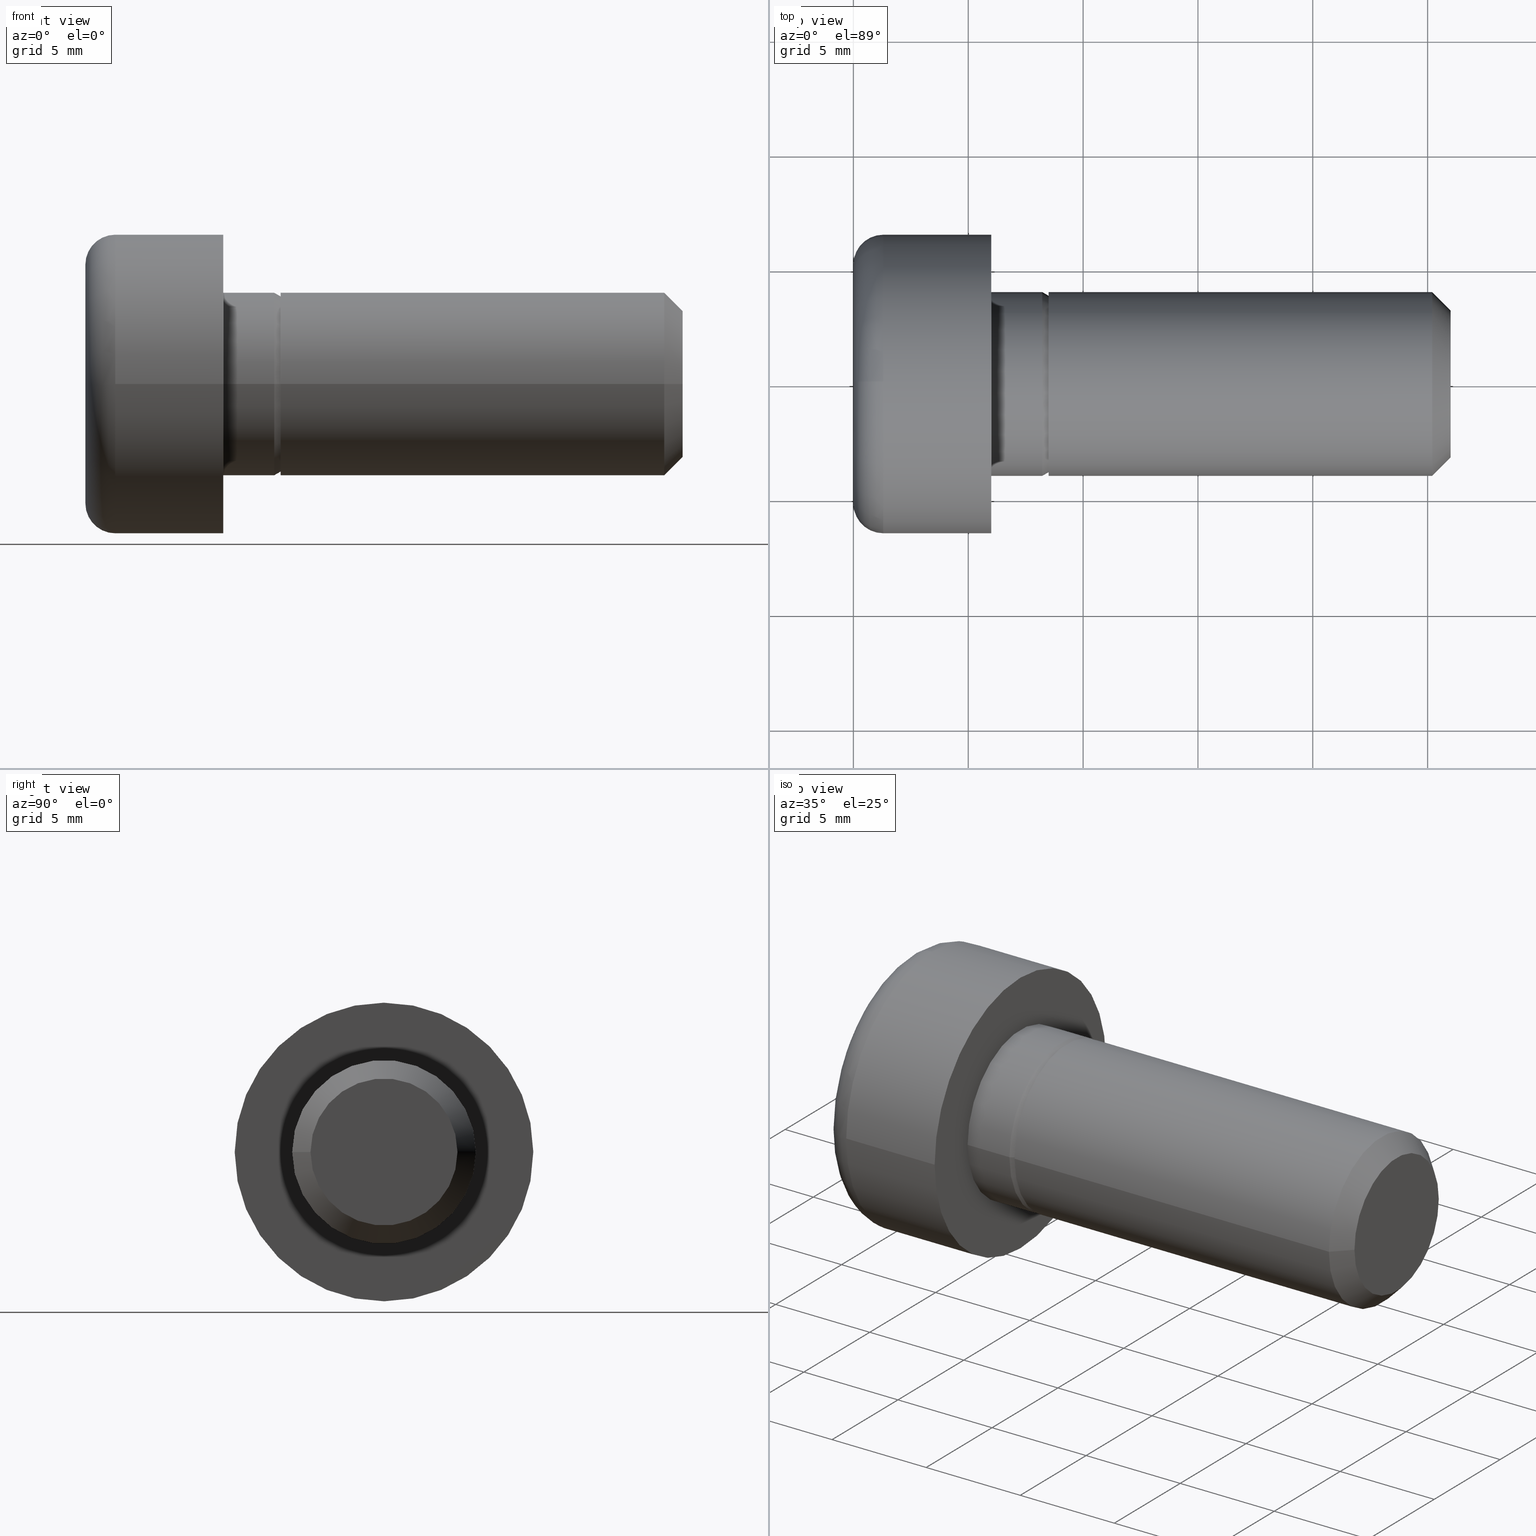
[diagram: canonical four-view strip — front | top / right | iso, engineering-drawing reading convention]
A machine part, canonical four-view strip (front | top / right | iso — engineering-drawing reading convention). The complete STEP part file that produces these views, byte-faithful:
ISO-10303-21;
HEADER;
/* Generated by software containing ST-Developer
 * from STEP Tools, Inc. (www.steptools.com) 
 */

FILE_DESCRIPTION(
/* description */ ('VITE TCEI  8X20 ZN RIBASSATA'),
/* implementation_level */ '2;1');

FILE_NAME(
/* name */ 
'Q:\\Catalogo\\2_Accessori Dierre\\Per Download Web e catalogo cartace
o\\CATALOGO ELEMENTI ASSEMBLAGGIO\\PAGINA 16\\CVITB0000021.stp',
/* time_stamp */ '2019-04-16T10:44:34+02:00',
/* author */ ('fzagni'),
/* organization */ (''),
/* preprocessor_version */ 'ST-DEVELOPER v17.2',
/* originating_system */ 'Autodesk Inventor 2019',
/* authorisation */ '');

FILE_SCHEMA (('AUTOMOTIVE_DESIGN { 1 0 10303 214 3 1 1 }'));
ENDSEC;

DATA;
#10=MECHANICAL_DESIGN_GEOMETRIC_PRESENTATION_REPRESENTATION('',(#13),#584);
#11=SHAPE_REPRESENTATION_RELATIONSHIP('SRR','None',#591,#12);
#12=ADVANCED_BREP_SHAPE_REPRESENTATION('',(#14),#583);
#13=STYLED_ITEM('',(#600),#14);
#14=MANIFOLD_SOLID_BREP('Solido1',#320);
#15=CYLINDRICAL_SURFACE('',#355,6.5);
#16=CYLINDRICAL_SURFACE('',#361,4.);
#17=CYLINDRICAL_SURFACE('',#370,4.);
#18=TOROIDAL_SURFACE('',#350,5.2,1.3);
#19=FACE_BOUND('',#70,.T.);
#20=FACE_BOUND('',#74,.T.);
#21=FACE_BOUND('',#78,.T.);
#22=CIRCLE('',#348,5.2);
#23=CIRCLE('',#349,5.2);
#24=CIRCLE('',#351,6.5);
#25=CIRCLE('',#352,6.5);
#26=CIRCLE('',#353,6.5);
#27=CIRCLE('',#354,1.3);
#28=CIRCLE('',#356,6.5);
#29=CIRCLE('',#357,6.5);
#30=CIRCLE('',#359,4.);
#31=CIRCLE('',#360,4.);
#32=CIRCLE('',#362,4.);
#33=CIRCLE('',#363,4.);
#34=CIRCLE('',#365,3.84);
#35=CIRCLE('',#366,3.84);
#36=CIRCLE('',#368,4.);
#37=CIRCLE('',#369,4.);
#38=CIRCLE('',#371,4.);
#39=CIRCLE('',#372,4.);
#40=CIRCLE('',#374,3.2);
#41=CIRCLE('',#375,3.2);
#42=CONICAL_SURFACE('',#346,1.8,1.0471975511966);
#43=CONICAL_SURFACE('',#364,3.92,0.523598775598294);
#44=CONICAL_SURFACE('',#373,3.6,0.785398163397449);
#45=FACE_OUTER_BOUND('',#62,.T.);
#46=FACE_OUTER_BOUND('',#63,.T.);
#47=FACE_OUTER_BOUND('',#64,.T.);
#48=FACE_OUTER_BOUND('',#65,.T.);
#49=FACE_OUTER_BOUND('',#66,.T.);
#50=FACE_OUTER_BOUND('',#67,.T.);
#51=FACE_OUTER_BOUND('',#68,.T.);
#52=FACE_OUTER_BOUND('',#69,.T.);
#53=FACE_OUTER_BOUND('',#71,.T.);
#54=FACE_OUTER_BOUND('',#72,.T.);
#55=FACE_OUTER_BOUND('',#73,.T.);
#56=FACE_OUTER_BOUND('',#75,.T.);
#57=FACE_OUTER_BOUND('',#76,.T.);
#58=FACE_OUTER_BOUND('',#77,.T.);
#59=FACE_OUTER_BOUND('',#79,.T.);
#60=FACE_OUTER_BOUND('',#80,.T.);
#61=FACE_OUTER_BOUND('',#81,.T.);
#62=EDGE_LOOP('',(#203,#204,#205,#206));
#63=EDGE_LOOP('',(#207,#208,#209,#210));
#64=EDGE_LOOP('',(#211,#212,#213,#214));
#65=EDGE_LOOP('',(#215,#216,#217,#218,#219));
#66=EDGE_LOOP('',(#220,#221,#222,#223));
#67=EDGE_LOOP('',(#224,#225,#226,#227));
#68=EDGE_LOOP('',(#228,#229,#230,#231,#232,#233,#234,#235,#236));
#69=EDGE_LOOP('',(#237,#238));
#70=EDGE_LOOP('',(#239,#240,#241,#242,#243,#244));
#71=EDGE_LOOP('',(#245,#246,#247,#248,#249,#250,#251));
#72=EDGE_LOOP('',(#252,#253,#254,#255,#256,#257,#258));
#73=EDGE_LOOP('',(#259,#260));
#74=EDGE_LOOP('',(#261,#262));
#75=EDGE_LOOP('',(#263,#264,#265,#266,#267,#268));
#76=EDGE_LOOP('',(#269,#270,#271,#272,#273,#274));
#77=EDGE_LOOP('',(#275,#276));
#78=EDGE_LOOP('',(#277,#278));
#79=EDGE_LOOP('',(#279,#280,#281,#282,#283,#284));
#80=EDGE_LOOP('',(#285,#286,#287,#288,#289,#290));
#81=EDGE_LOOP('',(#291,#292));
#82=LINE('',#479,#100);
#83=LINE('',#481,#101);
#84=LINE('',#482,#102);
#85=LINE('',#489,#103);
#86=LINE('',#490,#104);
#87=LINE('',#497,#105);
#88=LINE('',#498,#106);
#89=LINE('',#505,#107);
#90=LINE('',#507,#108);
#91=LINE('',#517,#109);
#92=LINE('',#518,#110);
#93=LINE('',#523,#111);
#94=LINE('',#526,#112);
#95=LINE('',#545,#113);
#96=LINE('',#556,#114);
#97=LINE('',#562,#115);
#98=LINE('',#573,#116);
#99=LINE('',#579,#117);
#100=VECTOR('',#381,10.);
#101=VECTOR('',#382,10.);
#102=VECTOR('',#383,10.);
#103=VECTOR('',#386,10.);
#104=VECTOR('',#387,10.);
#105=VECTOR('',#390,10.);
#106=VECTOR('',#391,10.);
#107=VECTOR('',#394,10.);
#108=VECTOR('',#395,10.);
#109=VECTOR('',#398,10.);
#110=VECTOR('',#399,10.);
#111=VECTOR('',#402,10.);
#112=VECTOR('',#405,1.8);
#113=VECTOR('',#428,6.5);
#114=VECTOR('',#441,4.);
#115=VECTOR('',#448,3.92);
#116=VECTOR('',#461,4.);
#117=VECTOR('',#468,3.6);
#118=(
BOUNDED_CURVE()
B_SPLINE_CURVE(2,(#475,#476,#477),.UNSPECIFIED.,.F.,.F.)
B_SPLINE_CURVE_WITH_KNOTS((3,3),(0.0224841371605266,0.381496060373957),
 .UNSPECIFIED.)
CURVE()
GEOMETRIC_REPRESENTATION_ITEM()
RATIONAL_B_SPLINE_CURVE((1.02102355330306,1.17897644669694,1.02102355330306))
REPRESENTATION_ITEM('')
);
#119=(
BOUNDED_CURVE()
B_SPLINE_CURVE(2,(#485,#486,#487),.UNSPECIFIED.,.F.,.F.)
B_SPLINE_CURVE_WITH_KNOTS((3,3),(0.0224841371605266,0.381496060373957),
 .UNSPECIFIED.)
CURVE()
GEOMETRIC_REPRESENTATION_ITEM()
RATIONAL_B_SPLINE_CURVE((1.02102355330306,1.17897644669694,1.02102355330306))
REPRESENTATION_ITEM('')
);
#120=(
BOUNDED_CURVE()
B_SPLINE_CURVE(2,(#493,#494,#495),.UNSPECIFIED.,.F.,.F.)
B_SPLINE_CURVE_WITH_KNOTS((3,3),(0.0224841371605264,0.381496060373957),
 .UNSPECIFIED.)
CURVE()
GEOMETRIC_REPRESENTATION_ITEM()
RATIONAL_B_SPLINE_CURVE((1.02102355330306,1.17897644669694,1.02102355330306))
REPRESENTATION_ITEM('')
);
#121=(
BOUNDED_CURVE()
B_SPLINE_CURVE(2,(#501,#502,#503),.UNSPECIFIED.,.F.,.F.)
B_SPLINE_CURVE_WITH_KNOTS((3,3),(0.0224841371605265,0.201990098767242),
 .UNSPECIFIED.)
CURVE()
GEOMETRIC_REPRESENTATION_ITEM()
RATIONAL_B_SPLINE_CURVE((1.02102355330306,1.1,1.1))
REPRESENTATION_ITEM('')
);
#122=(
BOUNDED_CURVE()
B_SPLINE_CURVE(2,(#508,#509,#510),.UNSPECIFIED.,.F.,.F.)
B_SPLINE_CURVE_WITH_KNOTS((3,3),(0.201990098767242,0.381496060373957),
 .UNSPECIFIED.)
CURVE()
GEOMETRIC_REPRESENTATION_ITEM()
RATIONAL_B_SPLINE_CURVE((1.1,1.1,1.02102355330306))
REPRESENTATION_ITEM('')
);
#123=(
BOUNDED_CURVE()
B_SPLINE_CURVE(2,(#513,#514,#515),.UNSPECIFIED.,.F.,.F.)
B_SPLINE_CURVE_WITH_KNOTS((3,3),(0.0224841371605265,0.381496060373957),
 .UNSPECIFIED.)
CURVE()
GEOMETRIC_REPRESENTATION_ITEM()
RATIONAL_B_SPLINE_CURVE((1.02102355330306,1.17897644669694,1.02102355330306))
REPRESENTATION_ITEM('')
);
#124=(
BOUNDED_CURVE()
B_SPLINE_CURVE(2,(#520,#521,#522),.UNSPECIFIED.,.F.,.F.)
B_SPLINE_CURVE_WITH_KNOTS((3,3),(0.0224841371605264,0.381496060373957),
 .UNSPECIFIED.)
CURVE()
GEOMETRIC_REPRESENTATION_ITEM()
RATIONAL_B_SPLINE_CURVE((1.02102355330306,1.17897644669695,1.02102355330306))
REPRESENTATION_ITEM('')
);
#125=VERTEX_POINT('',#473);
#126=VERTEX_POINT('',#474);
#127=VERTEX_POINT('',#478);
#128=VERTEX_POINT('',#480);
#129=VERTEX_POINT('',#484);
#130=VERTEX_POINT('',#488);
#131=VERTEX_POINT('',#492);
#132=VERTEX_POINT('',#496);
#133=VERTEX_POINT('',#500);
#134=VERTEX_POINT('',#504);
#135=VERTEX_POINT('',#506);
#136=VERTEX_POINT('',#512);
#137=VERTEX_POINT('',#516);
#138=VERTEX_POINT('',#525);
#139=VERTEX_POINT('',#528);
#140=VERTEX_POINT('',#529);
#141=VERTEX_POINT('',#533);
#142=VERTEX_POINT('',#534);
#143=VERTEX_POINT('',#536);
#144=VERTEX_POINT('',#541);
#145=VERTEX_POINT('',#542);
#146=VERTEX_POINT('',#547);
#147=VERTEX_POINT('',#548);
#148=VERTEX_POINT('',#552);
#149=VERTEX_POINT('',#553);
#150=VERTEX_POINT('',#558);
#151=VERTEX_POINT('',#559);
#152=VERTEX_POINT('',#564);
#153=VERTEX_POINT('',#565);
#154=VERTEX_POINT('',#569);
#155=VERTEX_POINT('',#570);
#156=VERTEX_POINT('',#575);
#157=VERTEX_POINT('',#576);
#158=EDGE_CURVE('',#125,#126,#118,.T.);
#159=EDGE_CURVE('',#127,#125,#82,.T.);
#160=EDGE_CURVE('',#128,#127,#83,.T.);
#161=EDGE_CURVE('',#128,#126,#84,.T.);
#162=EDGE_CURVE('',#129,#125,#119,.T.);
#163=EDGE_CURVE('',#130,#129,#85,.T.);
#164=EDGE_CURVE('',#127,#130,#86,.T.);
#165=EDGE_CURVE('',#131,#129,#120,.T.);
#166=EDGE_CURVE('',#132,#131,#87,.T.);
#167=EDGE_CURVE('',#130,#132,#88,.T.);
#168=EDGE_CURVE('',#126,#133,#121,.T.);
#169=EDGE_CURVE('',#134,#128,#89,.T.);
#170=EDGE_CURVE('',#134,#135,#90,.T.);
#171=EDGE_CURVE('',#133,#135,#122,.T.);
#172=EDGE_CURVE('',#135,#136,#123,.T.);
#173=EDGE_CURVE('',#137,#134,#91,.T.);
#174=EDGE_CURVE('',#137,#136,#92,.T.);
#175=EDGE_CURVE('',#136,#131,#124,.T.);
#176=EDGE_CURVE('',#132,#137,#93,.T.);
#177=EDGE_CURVE('',#138,#133,#94,.T.);
#178=EDGE_CURVE('',#139,#140,#22,.T.);
#179=EDGE_CURVE('',#140,#139,#23,.T.);
#180=EDGE_CURVE('',#141,#142,#24,.T.);
#181=EDGE_CURVE('',#143,#141,#25,.T.);
#182=EDGE_CURVE('',#142,#143,#26,.T.);
#183=EDGE_CURVE('',#142,#140,#27,.T.);
#184=EDGE_CURVE('',#144,#145,#28,.T.);
#185=EDGE_CURVE('',#145,#144,#29,.T.);
#186=EDGE_CURVE('',#145,#143,#95,.T.);
#187=EDGE_CURVE('',#146,#147,#30,.T.);
#188=EDGE_CURVE('',#147,#146,#31,.T.);
#189=EDGE_CURVE('',#148,#149,#32,.T.);
#190=EDGE_CURVE('',#149,#148,#33,.T.);
#191=EDGE_CURVE('',#149,#147,#96,.T.);
#192=EDGE_CURVE('',#150,#151,#34,.T.);
#193=EDGE_CURVE('',#151,#150,#35,.T.);
#194=EDGE_CURVE('',#151,#149,#97,.T.);
#195=EDGE_CURVE('',#152,#153,#36,.T.);
#196=EDGE_CURVE('',#153,#152,#37,.T.);
#197=EDGE_CURVE('',#154,#155,#38,.T.);
#198=EDGE_CURVE('',#155,#154,#39,.T.);
#199=EDGE_CURVE('',#155,#153,#98,.T.);
#200=EDGE_CURVE('',#156,#157,#40,.T.);
#201=EDGE_CURVE('',#157,#156,#41,.T.);
#202=EDGE_CURVE('',#157,#155,#99,.T.);
#203=ORIENTED_EDGE('',*,*,#158,.F.);
#204=ORIENTED_EDGE('',*,*,#159,.F.);
#205=ORIENTED_EDGE('',*,*,#160,.F.);
#206=ORIENTED_EDGE('',*,*,#161,.T.);
#207=ORIENTED_EDGE('',*,*,#162,.F.);
#208=ORIENTED_EDGE('',*,*,#163,.F.);
#209=ORIENTED_EDGE('',*,*,#164,.F.);
#210=ORIENTED_EDGE('',*,*,#159,.T.);
#211=ORIENTED_EDGE('',*,*,#165,.F.);
#212=ORIENTED_EDGE('',*,*,#166,.F.);
#213=ORIENTED_EDGE('',*,*,#167,.F.);
#214=ORIENTED_EDGE('',*,*,#163,.T.);
#215=ORIENTED_EDGE('',*,*,#168,.F.);
#216=ORIENTED_EDGE('',*,*,#161,.F.);
#217=ORIENTED_EDGE('',*,*,#169,.F.);
#218=ORIENTED_EDGE('',*,*,#170,.T.);
#219=ORIENTED_EDGE('',*,*,#171,.F.);
#220=ORIENTED_EDGE('',*,*,#172,.F.);
#221=ORIENTED_EDGE('',*,*,#170,.F.);
#222=ORIENTED_EDGE('',*,*,#173,.F.);
#223=ORIENTED_EDGE('',*,*,#174,.T.);
#224=ORIENTED_EDGE('',*,*,#175,.F.);
#225=ORIENTED_EDGE('',*,*,#174,.F.);
#226=ORIENTED_EDGE('',*,*,#176,.F.);
#227=ORIENTED_EDGE('',*,*,#166,.T.);
#228=ORIENTED_EDGE('',*,*,#177,.T.);
#229=ORIENTED_EDGE('',*,*,#171,.T.);
#230=ORIENTED_EDGE('',*,*,#172,.T.);
#231=ORIENTED_EDGE('',*,*,#175,.T.);
#232=ORIENTED_EDGE('',*,*,#165,.T.);
#233=ORIENTED_EDGE('',*,*,#162,.T.);
#234=ORIENTED_EDGE('',*,*,#158,.T.);
#235=ORIENTED_EDGE('',*,*,#168,.T.);
#236=ORIENTED_EDGE('',*,*,#177,.F.);
#237=ORIENTED_EDGE('',*,*,#178,.F.);
#238=ORIENTED_EDGE('',*,*,#179,.F.);
#239=ORIENTED_EDGE('',*,*,#167,.T.);
#240=ORIENTED_EDGE('',*,*,#176,.T.);
#241=ORIENTED_EDGE('',*,*,#173,.T.);
#242=ORIENTED_EDGE('',*,*,#169,.T.);
#243=ORIENTED_EDGE('',*,*,#160,.T.);
#244=ORIENTED_EDGE('',*,*,#164,.T.);
#245=ORIENTED_EDGE('',*,*,#180,.F.);
#246=ORIENTED_EDGE('',*,*,#181,.F.);
#247=ORIENTED_EDGE('',*,*,#182,.F.);
#248=ORIENTED_EDGE('',*,*,#183,.T.);
#249=ORIENTED_EDGE('',*,*,#179,.T.);
#250=ORIENTED_EDGE('',*,*,#178,.T.);
#251=ORIENTED_EDGE('',*,*,#183,.F.);
#252=ORIENTED_EDGE('',*,*,#184,.F.);
#253=ORIENTED_EDGE('',*,*,#185,.F.);
#254=ORIENTED_EDGE('',*,*,#186,.T.);
#255=ORIENTED_EDGE('',*,*,#181,.T.);
#256=ORIENTED_EDGE('',*,*,#180,.T.);
#257=ORIENTED_EDGE('',*,*,#182,.T.);
#258=ORIENTED_EDGE('',*,*,#186,.F.);
#259=ORIENTED_EDGE('',*,*,#184,.T.);
#260=ORIENTED_EDGE('',*,*,#185,.T.);
#261=ORIENTED_EDGE('',*,*,#187,.F.);
#262=ORIENTED_EDGE('',*,*,#188,.F.);
#263=ORIENTED_EDGE('',*,*,#189,.F.);
#264=ORIENTED_EDGE('',*,*,#190,.F.);
#265=ORIENTED_EDGE('',*,*,#191,.T.);
#266=ORIENTED_EDGE('',*,*,#188,.T.);
#267=ORIENTED_EDGE('',*,*,#187,.T.);
#268=ORIENTED_EDGE('',*,*,#191,.F.);
#269=ORIENTED_EDGE('',*,*,#192,.F.);
#270=ORIENTED_EDGE('',*,*,#193,.F.);
#271=ORIENTED_EDGE('',*,*,#194,.T.);
#272=ORIENTED_EDGE('',*,*,#190,.T.);
#273=ORIENTED_EDGE('',*,*,#189,.T.);
#274=ORIENTED_EDGE('',*,*,#194,.F.);
#275=ORIENTED_EDGE('',*,*,#195,.F.);
#276=ORIENTED_EDGE('',*,*,#196,.F.);
#277=ORIENTED_EDGE('',*,*,#192,.T.);
#278=ORIENTED_EDGE('',*,*,#193,.T.);
#279=ORIENTED_EDGE('',*,*,#197,.F.);
#280=ORIENTED_EDGE('',*,*,#198,.F.);
#281=ORIENTED_EDGE('',*,*,#199,.T.);
#282=ORIENTED_EDGE('',*,*,#196,.T.);
#283=ORIENTED_EDGE('',*,*,#195,.T.);
#284=ORIENTED_EDGE('',*,*,#199,.F.);
#285=ORIENTED_EDGE('',*,*,#200,.F.);
#286=ORIENTED_EDGE('',*,*,#201,.F.);
#287=ORIENTED_EDGE('',*,*,#202,.T.);
#288=ORIENTED_EDGE('',*,*,#198,.T.);
#289=ORIENTED_EDGE('',*,*,#197,.T.);
#290=ORIENTED_EDGE('',*,*,#202,.F.);
#291=ORIENTED_EDGE('',*,*,#200,.T.);
#292=ORIENTED_EDGE('',*,*,#201,.T.);
#293=PLANE('',#340);
#294=PLANE('',#341);
#295=PLANE('',#342);
#296=PLANE('',#343);
#297=PLANE('',#344);
#298=PLANE('',#345);
#299=PLANE('',#347);
#300=PLANE('',#358);
#301=PLANE('',#367);
#302=PLANE('',#376);
#303=ADVANCED_FACE('',(#45),#293,.F.);
#304=ADVANCED_FACE('',(#46),#294,.F.);
#305=ADVANCED_FACE('',(#47),#295,.F.);
#306=ADVANCED_FACE('',(#48),#296,.F.);
#307=ADVANCED_FACE('',(#49),#297,.F.);
#308=ADVANCED_FACE('',(#50),#298,.F.);
#309=ADVANCED_FACE('',(#51),#42,.F.);
#310=ADVANCED_FACE('',(#52,#19),#299,.T.);
#311=ADVANCED_FACE('',(#53),#18,.T.);
#312=ADVANCED_FACE('',(#54),#15,.T.);
#313=ADVANCED_FACE('',(#55,#20),#300,.T.);
#314=ADVANCED_FACE('',(#56),#16,.T.);
#315=ADVANCED_FACE('',(#57),#43,.T.);
#316=ADVANCED_FACE('',(#58,#21),#301,.T.);
#317=ADVANCED_FACE('',(#59),#17,.T.);
#318=ADVANCED_FACE('',(#60),#44,.T.);
#319=ADVANCED_FACE('',(#61),#302,.T.);
#320=CLOSED_SHELL('',(#303,#304,#305,#306,#307,#308,#309,#310,#311,#312,
#313,#314,#315,#316,#317,#318,#319));
#321=DERIVED_UNIT_ELEMENT(#323,1.);
#322=DERIVED_UNIT_ELEMENT(#586,3.);
#323=(
MASS_UNIT()
NAMED_UNIT(*)
SI_UNIT($,.GRAM.)
);
#324=DERIVED_UNIT((#321,#322));
#325=MEASURE_REPRESENTATION_ITEM('density measure',
POSITIVE_RATIO_MEASURE(7.85),#324);
#326=PROPERTY_DEFINITION_REPRESENTATION(#331,#328);
#327=PROPERTY_DEFINITION_REPRESENTATION(#332,#329);
#328=REPRESENTATION('material name',(#330),#583);
#329=REPRESENTATION('density',(#325),#583);
#330=DESCRIPTIVE_REPRESENTATION_ITEM('FE 310-0','FE 310-0');
#331=PROPERTY_DEFINITION('material property','material name',#593);
#332=PROPERTY_DEFINITION('material property','density of part',#593);
#333=DATE_TIME_ROLE('creation_date');
#334=APPLIED_DATE_AND_TIME_ASSIGNMENT(#335,#333,(#593));
#335=DATE_AND_TIME(#336,#337);
#336=CALENDAR_DATE(2003,9,5);
#337=LOCAL_TIME(16,38,37.,#338);
#338=COORDINATED_UNIVERSAL_TIME_OFFSET(0,0,.BEHIND.);
#339=AXIS2_PLACEMENT_3D('placement',#471,#377,#378);
#340=AXIS2_PLACEMENT_3D('',#472,#379,#380);
#341=AXIS2_PLACEMENT_3D('',#483,#384,#385);
#342=AXIS2_PLACEMENT_3D('',#491,#388,#389);
#343=AXIS2_PLACEMENT_3D('',#499,#392,#393);
#344=AXIS2_PLACEMENT_3D('',#511,#396,#397);
#345=AXIS2_PLACEMENT_3D('',#519,#400,#401);
#346=AXIS2_PLACEMENT_3D('',#524,#403,#404);
#347=AXIS2_PLACEMENT_3D('',#527,#406,#407);
#348=AXIS2_PLACEMENT_3D('',#530,#408,#409);
#349=AXIS2_PLACEMENT_3D('',#531,#410,#411);
#350=AXIS2_PLACEMENT_3D('',#532,#412,#413);
#351=AXIS2_PLACEMENT_3D('',#535,#414,#415);
#352=AXIS2_PLACEMENT_3D('',#537,#416,#417);
#353=AXIS2_PLACEMENT_3D('',#538,#418,#419);
#354=AXIS2_PLACEMENT_3D('',#539,#420,#421);
#355=AXIS2_PLACEMENT_3D('',#540,#422,#423);
#356=AXIS2_PLACEMENT_3D('',#543,#424,#425);
#357=AXIS2_PLACEMENT_3D('',#544,#426,#427);
#358=AXIS2_PLACEMENT_3D('',#546,#429,#430);
#359=AXIS2_PLACEMENT_3D('',#549,#431,#432);
#360=AXIS2_PLACEMENT_3D('',#550,#433,#434);
#361=AXIS2_PLACEMENT_3D('',#551,#435,#436);
#362=AXIS2_PLACEMENT_3D('',#554,#437,#438);
#363=AXIS2_PLACEMENT_3D('',#555,#439,#440);
#364=AXIS2_PLACEMENT_3D('',#557,#442,#443);
#365=AXIS2_PLACEMENT_3D('',#560,#444,#445);
#366=AXIS2_PLACEMENT_3D('',#561,#446,#447);
#367=AXIS2_PLACEMENT_3D('',#563,#449,#450);
#368=AXIS2_PLACEMENT_3D('',#566,#451,#452);
#369=AXIS2_PLACEMENT_3D('',#567,#453,#454);
#370=AXIS2_PLACEMENT_3D('',#568,#455,#456);
#371=AXIS2_PLACEMENT_3D('',#571,#457,#458);
#372=AXIS2_PLACEMENT_3D('',#572,#459,#460);
#373=AXIS2_PLACEMENT_3D('',#574,#462,#463);
#374=AXIS2_PLACEMENT_3D('',#577,#464,#465);
#375=AXIS2_PLACEMENT_3D('',#578,#466,#467);
#376=AXIS2_PLACEMENT_3D('',#580,#469,#470);
#377=DIRECTION('axis',(0.,0.,1.));
#378=DIRECTION('refdir',(1.,0.,0.));
#379=DIRECTION('center_axis',(0.,-0.5,-0.866025403784439));
#380=DIRECTION('ref_axis',(-1.,0.,0.));
#381=DIRECTION('',(1.,0.,0.));
#382=DIRECTION('',(-1.98609093482624E-33,0.866025403784439,-0.5));
#383=DIRECTION('',(1.,0.,0.));
#384=DIRECTION('center_axis',(0.,0.5,-0.866025403784439));
#385=DIRECTION('ref_axis',(-1.,0.,0.));
#386=DIRECTION('',(1.,0.,0.));
#387=DIRECTION('',(-1.98609093482624E-33,0.866025403784439,0.5));
#388=DIRECTION('center_axis',(0.,1.,0.));
#389=DIRECTION('ref_axis',(0.,0.,1.));
#390=DIRECTION('',(1.,0.,0.));
#391=DIRECTION('',(0.,0.,1.));
#392=DIRECTION('center_axis',(0.,-1.,0.));
#393=DIRECTION('ref_axis',(0.,0.,-1.));
#394=DIRECTION('',(0.,0.,-1.));
#395=DIRECTION('',(1.,0.,0.));
#396=DIRECTION('center_axis',(0.,-0.5,0.866025403784439));
#397=DIRECTION('ref_axis',(1.,0.,0.));
#398=DIRECTION('',(1.98609093482624E-33,-0.866025403784439,-0.5));
#399=DIRECTION('',(1.,0.,0.));
#400=DIRECTION('center_axis',(0.,0.5,0.866025403784439));
#401=DIRECTION('ref_axis',(1.,0.,0.));
#402=DIRECTION('',(1.98609093482624E-33,-0.866025403784439,0.5));
#403=DIRECTION('center_axis',(-1.,-2.29334027171402E-33,0.));
#404=DIRECTION('ref_axis',(0.,1.,0.));
#405=DIRECTION('',(-0.5,-0.866025403784438,-1.06057523872491E-16));
#406=DIRECTION('center_axis',(-1.,-2.29334027171402E-33,0.));
#407=DIRECTION('ref_axis',(0.,0.,1.));
#408=DIRECTION('center_axis',(1.,2.29334027171402E-33,0.));
#409=DIRECTION('ref_axis',(0.,1.,0.));
#410=DIRECTION('center_axis',(1.,2.29334027171402E-33,0.));
#411=DIRECTION('ref_axis',(0.,1.,0.));
#412=DIRECTION('center_axis',(1.,2.29334027171402E-33,0.));
#413=DIRECTION('ref_axis',(0.,0.,-1.));
#414=DIRECTION('center_axis',(1.,2.29334027171402E-33,0.));
#415=DIRECTION('ref_axis',(0.,1.,0.));
#416=DIRECTION('center_axis',(1.,2.29334027171402E-33,0.));
#417=DIRECTION('ref_axis',(0.,1.,0.));
#418=DIRECTION('center_axis',(1.,2.29334027171402E-33,0.));
#419=DIRECTION('ref_axis',(0.,1.,0.));
#420=DIRECTION('center_axis',(2.29334027171402E-33,-1.,-1.22464679914735E-16));
#421=DIRECTION('ref_axis',(0.,-1.22464679914735E-16,1.));
#422=DIRECTION('center_axis',(1.,2.29334027171402E-33,0.));
#423=DIRECTION('ref_axis',(0.,1.,0.));
#424=DIRECTION('center_axis',(1.,2.29334027171402E-33,0.));
#425=DIRECTION('ref_axis',(0.,1.,0.));
#426=DIRECTION('center_axis',(1.,2.29334027171402E-33,0.));
#427=DIRECTION('ref_axis',(0.,1.,0.));
#428=DIRECTION('',(-1.,-2.29334027171402E-33,0.));
#429=DIRECTION('center_axis',(1.,2.29334027171402E-33,0.));
#430=DIRECTION('ref_axis',(0.,0.,-1.));
#431=DIRECTION('center_axis',(1.,2.29334027171402E-33,0.));
#432=DIRECTION('ref_axis',(0.,1.,0.));
#433=DIRECTION('center_axis',(1.,2.29334027171402E-33,0.));
#434=DIRECTION('ref_axis',(0.,1.,0.));
#435=DIRECTION('center_axis',(1.,2.29334027171402E-33,0.));
#436=DIRECTION('ref_axis',(0.,1.,0.));
#437=DIRECTION('center_axis',(1.,2.29334027171402E-33,0.));
#438=DIRECTION('ref_axis',(0.,1.,0.));
#439=DIRECTION('center_axis',(1.,2.29334027171402E-33,0.));
#440=DIRECTION('ref_axis',(0.,1.,0.));
#441=DIRECTION('',(-1.,-2.29334027171402E-33,0.));
#442=DIRECTION('center_axis',(-1.,-2.29334027171402E-33,0.));
#443=DIRECTION('ref_axis',(0.,1.,0.));
#444=DIRECTION('center_axis',(1.,2.29334027171402E-33,0.));
#445=DIRECTION('ref_axis',(0.,1.,0.));
#446=DIRECTION('center_axis',(1.,2.29334027171402E-33,0.));
#447=DIRECTION('ref_axis',(0.,1.,0.));
#448=DIRECTION('',(-0.866025403784441,-0.499999999999996,-6.12323399573671E-17));
#449=DIRECTION('center_axis',(-1.,-2.29334027171402E-33,0.));
#450=DIRECTION('ref_axis',(0.,0.,1.));
#451=DIRECTION('center_axis',(1.,2.29334027171402E-33,0.));
#452=DIRECTION('ref_axis',(0.,1.,0.));
#453=DIRECTION('center_axis',(1.,2.29334027171402E-33,0.));
#454=DIRECTION('ref_axis',(0.,1.,0.));
#455=DIRECTION('center_axis',(1.,2.29334027171402E-33,0.));
#456=DIRECTION('ref_axis',(0.,1.,0.));
#457=DIRECTION('center_axis',(1.,2.29334027171402E-33,0.));
#458=DIRECTION('ref_axis',(0.,1.,0.));
#459=DIRECTION('center_axis',(1.,2.29334027171402E-33,0.));
#460=DIRECTION('ref_axis',(0.,1.,0.));
#461=DIRECTION('',(-1.,-2.29334027171402E-33,0.));
#462=DIRECTION('center_axis',(-1.,-2.29334027171402E-33,0.));
#463=DIRECTION('ref_axis',(0.,1.,0.));
#464=DIRECTION('center_axis',(1.,2.29334027171402E-33,0.));
#465=DIRECTION('ref_axis',(0.,1.,0.));
#466=DIRECTION('center_axis',(1.,2.29334027171402E-33,0.));
#467=DIRECTION('ref_axis',(0.,1.,0.));
#468=DIRECTION('',(-0.707106781186547,-0.707106781186548,-8.65956056235494E-17));
#469=DIRECTION('center_axis',(1.,2.29334027171402E-33,0.));
#470=DIRECTION('ref_axis',(0.,0.,-1.));
#471=CARTESIAN_POINT('',(0.,0.,0.));
#472=CARTESIAN_POINT('Origin',(-4.1633929657993E-16,-3.46944695195361E-16,
-3.46410161513775));
#473=CARTESIAN_POINT('',(2.5,-3.46944695195361E-16,-3.46410161513775));
#474=CARTESIAN_POINT('',(2.5,-3.,-1.73205080756888));
#475=CARTESIAN_POINT('Ctrl Pts',(2.5,-3.46944695195361E-16,-3.46410161513775));
#476=CARTESIAN_POINT('Ctrl Pts',(3.,-1.5,-2.59807621135332));
#477=CARTESIAN_POINT('Ctrl Pts',(2.5,-3.,-1.73205080756888));
#478=CARTESIAN_POINT('',(-4.1633929657993E-16,-3.46944695195361E-16,-3.46410161513775));
#479=CARTESIAN_POINT('',(-4.1633929657993E-16,-3.46944695195361E-16,-3.46410161513775));
#480=CARTESIAN_POINT('',(-4.1633929657993E-16,-3.,-1.73205080756888));
#481=CARTESIAN_POINT('',(-4.1633929657993E-16,-0.75,-3.03108891324554));
#482=CARTESIAN_POINT('',(-4.1633929657993E-16,-3.,-1.73205080756888));
#483=CARTESIAN_POINT('Origin',(-4.1633929657993E-16,3.,-1.73205080756888));
#484=CARTESIAN_POINT('',(2.5,3.,-1.73205080756888));
#485=CARTESIAN_POINT('Ctrl Pts',(2.5,3.,-1.73205080756888));
#486=CARTESIAN_POINT('Ctrl Pts',(3.,1.5,-2.59807621135332));
#487=CARTESIAN_POINT('Ctrl Pts',(2.5,-3.46944695195361E-16,-3.46410161513775));
#488=CARTESIAN_POINT('',(-4.1633929657993E-16,3.,-1.73205080756888));
#489=CARTESIAN_POINT('',(-4.1633929657993E-16,3.,-1.73205080756888));
#490=CARTESIAN_POINT('',(-4.1633929657993E-16,2.25,-2.1650635094611));
#491=CARTESIAN_POINT('Origin',(-4.1633929657993E-16,3.,1.73205080756888));
#492=CARTESIAN_POINT('',(2.5,3.,1.73205080756888));
#493=CARTESIAN_POINT('Ctrl Pts',(2.5,3.,1.73205080756888));
#494=CARTESIAN_POINT('Ctrl Pts',(3.,3.,-1.21430643318376E-16));
#495=CARTESIAN_POINT('Ctrl Pts',(2.5,3.,-1.73205080756888));
#496=CARTESIAN_POINT('',(-4.1633929657993E-16,3.,1.73205080756888));
#497=CARTESIAN_POINT('',(-4.1633929657993E-16,3.,1.73205080756888));
#498=CARTESIAN_POINT('',(-4.1633929657993E-16,3.,0.866025403784439));
#499=CARTESIAN_POINT('Origin',(-4.1633929657993E-16,-3.,-1.73205080756888));
#500=CARTESIAN_POINT('',(2.76794919243112,-3.,-4.99101288231522E-16));
#501=CARTESIAN_POINT('Ctrl Pts',(2.5,-3.,-1.73205080756888));
#502=CARTESIAN_POINT('Ctrl Pts',(2.76794919243112,-3.,-0.803847577293368));
#503=CARTESIAN_POINT('Ctrl Pts',(2.76794919243112,-3.,-6.30808536718838E-16));
#504=CARTESIAN_POINT('',(-4.1633929657993E-16,-3.,1.73205080756888));
#505=CARTESIAN_POINT('',(-4.1633929657993E-16,-3.,-0.866025403784439));
#506=CARTESIAN_POINT('',(2.5,-3.,1.73205080756888));
#507=CARTESIAN_POINT('',(-4.1633929657993E-16,-3.,1.73205080756888));
#508=CARTESIAN_POINT('Ctrl Pts',(2.76794919243112,-3.,-6.30808536718838E-16));
#509=CARTESIAN_POINT('Ctrl Pts',(2.76794919243112,-3.,0.803847577293367));
#510=CARTESIAN_POINT('Ctrl Pts',(2.5,-3.,1.73205080756888));
#511=CARTESIAN_POINT('Origin',(-4.1633929657993E-16,-3.,1.73205080756888));
#512=CARTESIAN_POINT('',(2.5,-6.93889390390723E-17,3.46410161513775));
#513=CARTESIAN_POINT('Ctrl Pts',(2.5,-3.,1.73205080756888));
#514=CARTESIAN_POINT('Ctrl Pts',(3.,-1.5,2.59807621135332));
#515=CARTESIAN_POINT('Ctrl Pts',(2.5,-6.93889390390723E-17,3.46410161513775));
#516=CARTESIAN_POINT('',(-4.1633929657993E-16,-6.93889390390723E-17,3.46410161513775));
#517=CARTESIAN_POINT('',(-4.1633929657993E-16,-2.25,2.1650635094611));
#518=CARTESIAN_POINT('',(-4.1633929657993E-16,-6.93889390390723E-17,3.46410161513775));
#519=CARTESIAN_POINT('Origin',(-4.1633929657993E-16,-6.93889390390723E-17,
3.46410161513775));
#520=CARTESIAN_POINT('Ctrl Pts',(2.5,-6.93889390390723E-17,3.46410161513775));
#521=CARTESIAN_POINT('Ctrl Pts',(3.,1.5,2.59807621135332));
#522=CARTESIAN_POINT('Ctrl Pts',(2.5,3.,1.73205080756888));
#523=CARTESIAN_POINT('',(-4.1633929657993E-16,0.75,3.03108891324554));
#524=CARTESIAN_POINT('Origin',(3.46076951545867,-2.3833091217915E-33,0.));
#525=CARTESIAN_POINT('',(4.5,0.,0.));
#526=CARTESIAN_POINT('',(3.46076951545867,-1.8,-2.20436423846524E-16));
#527=CARTESIAN_POINT('Origin',(-4.1633929657993E-16,4.4,0.));
#528=CARTESIAN_POINT('',(-8.32678593159861E-16,5.2,0.));
#529=CARTESIAN_POINT('',(-1.11022302462516E-15,-6.36816335556624E-16,5.2));
#530=CARTESIAN_POINT('Origin',(-1.11022302462516E-15,-1.03200312227131E-32,
0.));
#531=CARTESIAN_POINT('Origin',(-1.11022302462516E-15,-1.03200312227131E-32,
0.));
#532=CARTESIAN_POINT('Origin',(1.3,0.,0.));
#533=CARTESIAN_POINT('',(1.3,6.5,0.));
#534=CARTESIAN_POINT('',(1.3,-7.9602041944578E-16,6.5));
#535=CARTESIAN_POINT('Origin',(1.3,-7.33868886948485E-33,0.));
#536=CARTESIAN_POINT('',(1.3,-6.5,-7.9602041944578E-16));
#537=CARTESIAN_POINT('Origin',(1.3,-7.33868886948485E-33,0.));
#538=CARTESIAN_POINT('Origin',(1.3,-7.33868886948485E-33,0.));
#539=CARTESIAN_POINT('Origin',(1.3,-6.36816335556624E-16,5.2));
#540=CARTESIAN_POINT('Origin',(3.65,-1.94933923095692E-33,0.));
#541=CARTESIAN_POINT('',(6.,6.5,0.));
#542=CARTESIAN_POINT('',(6.,-6.5,-7.9602041944578E-16));
#543=CARTESIAN_POINT('Origin',(6.,3.44001040757102E-33,0.));
#544=CARTESIAN_POINT('Origin',(6.,3.44001040757102E-33,0.));
#545=CARTESIAN_POINT('',(3.65,-6.5,-7.9602041944578E-16));
#546=CARTESIAN_POINT('Origin',(6.,5.25,0.));
#547=CARTESIAN_POINT('',(6.,4.,0.));
#548=CARTESIAN_POINT('',(6.,-4.,-4.89858719658941E-16));
#549=CARTESIAN_POINT('Origin',(6.,3.44001040757103E-33,0.));
#550=CARTESIAN_POINT('Origin',(6.,3.44001040757103E-33,0.));
#551=CARTESIAN_POINT('Origin',(7.11143593539449,5.98891119764134E-33,0.));
#552=CARTESIAN_POINT('',(8.22287187078898,4.,0.));
#553=CARTESIAN_POINT('',(8.22287187078898,-4.,-4.89858719658941E-16));
#554=CARTESIAN_POINT('Origin',(8.22287187078898,8.53781198771166E-33,0.));
#555=CARTESIAN_POINT('Origin',(8.22287187078898,8.53781198771166E-33,0.));
#556=CARTESIAN_POINT('',(7.11143593539449,-4.,-4.89858719658941E-16));
#557=CARTESIAN_POINT('Origin',(8.36143593539449,8.85558653728386E-33,0.));
#558=CARTESIAN_POINT('',(8.5,3.84,0.));
#559=CARTESIAN_POINT('',(8.5,-3.84,-4.70264370872583E-16));
#560=CARTESIAN_POINT('Origin',(8.5,9.17336108685606E-33,0.));
#561=CARTESIAN_POINT('Origin',(8.5,9.17336108685606E-33,0.));
#562=CARTESIAN_POINT('',(8.36143593539449,-3.92,-4.80061545265762E-16));
#563=CARTESIAN_POINT('Origin',(8.5,3.92,0.));
#564=CARTESIAN_POINT('',(8.5,4.,0.));
#565=CARTESIAN_POINT('',(8.5,-4.,-4.89858719658941E-16));
#566=CARTESIAN_POINT('Origin',(8.5,9.17336108685606E-33,0.));
#567=CARTESIAN_POINT('Origin',(8.5,9.17336108685606E-33,0.));
#568=CARTESIAN_POINT('Origin',(16.85,2.83227523556681E-32,0.));
#569=CARTESIAN_POINT('',(25.2,4.,0.));
#570=CARTESIAN_POINT('',(25.2,-4.,-4.89858719658941E-16));
#571=CARTESIAN_POINT('Origin',(25.2,4.74721436244801E-32,0.));
#572=CARTESIAN_POINT('Origin',(25.2,4.74721436244801E-32,0.));
#573=CARTESIAN_POINT('',(16.85,-4.,-4.89858719658941E-16));
#574=CARTESIAN_POINT('Origin',(25.6,4.83894797331657E-32,0.));
#575=CARTESIAN_POINT('',(26.,3.2,0.));
#576=CARTESIAN_POINT('',(26.,-3.2,-3.91886975727153E-16));
#577=CARTESIAN_POINT('Origin',(26.,4.93068158418513E-32,0.));
#578=CARTESIAN_POINT('Origin',(26.,4.93068158418513E-32,0.));
#579=CARTESIAN_POINT('',(25.6,-3.6,-4.40872847693047E-16));
#580=CARTESIAN_POINT('Origin',(26.,1.6,0.));
#581=UNCERTAINTY_MEASURE_WITH_UNIT(LENGTH_MEASURE(0.01),#585,
'DISTANCE_ACCURACY_VALUE',
'Maximum model space distance between geometric entities at asserted c
onnectivities');
#582=UNCERTAINTY_MEASURE_WITH_UNIT(LENGTH_MEASURE(0.01),#585,
'DISTANCE_ACCURACY_VALUE',
'Maximum model space distance between geometric entities at asserted c
onnectivities');
#583=(
GEOMETRIC_REPRESENTATION_CONTEXT(3)
GLOBAL_UNCERTAINTY_ASSIGNED_CONTEXT((#581))
GLOBAL_UNIT_ASSIGNED_CONTEXT((#585,#587,#588))
REPRESENTATION_CONTEXT('','3D')
);
#584=(
GEOMETRIC_REPRESENTATION_CONTEXT(3)
GLOBAL_UNCERTAINTY_ASSIGNED_CONTEXT((#582))
GLOBAL_UNIT_ASSIGNED_CONTEXT((#585,#587,#588))
REPRESENTATION_CONTEXT('','3D')
);
#585=(
LENGTH_UNIT()
NAMED_UNIT(*)
SI_UNIT(.MILLI.,.METRE.)
);
#586=(
LENGTH_UNIT()
NAMED_UNIT(*)
SI_UNIT(.CENTI.,.METRE.)
);
#587=(
NAMED_UNIT(*)
PLANE_ANGLE_UNIT()
SI_UNIT($,.RADIAN.)
);
#588=(
NAMED_UNIT(*)
SI_UNIT($,.STERADIAN.)
SOLID_ANGLE_UNIT()
);
#589=SHAPE_DEFINITION_REPRESENTATION(#590,#591);
#590=PRODUCT_DEFINITION_SHAPE('',$,#593);
#591=SHAPE_REPRESENTATION('',(#339),#583);
#592=PRODUCT_DEFINITION_CONTEXT('part definition',#597,'design');
#593=PRODUCT_DEFINITION('!25.189.01!20!!','25.189.01',#594,#592);
#594=PRODUCT_DEFINITION_FORMATION('D',$,#599);
#595=PRODUCT_RELATED_PRODUCT_CATEGORY('25.189.01','25.189.01',(#599));
#596=APPLICATION_PROTOCOL_DEFINITION('international standard',
'automotive_design',2009,#597);
#597=APPLICATION_CONTEXT(
'Core Data for Automotive Mechanical Design Process');
#598=PRODUCT_CONTEXT('part definition',#597,'mechanical');
#599=PRODUCT('!25.189.01!20!!','25.189.01',
'VITE TCEI  8X20 ZN RIBASSATA',(#598));
#600=PRESENTATION_STYLE_ASSIGNMENT((#601));
#601=SURFACE_STYLE_USAGE(.BOTH.,#604);
#602=SURFACE_STYLE_RENDERING_WITH_PROPERTIES($,#608,(#603));
#603=SURFACE_STYLE_TRANSPARENT(1.);
#604=SURFACE_SIDE_STYLE('',(#605,#602));
#605=SURFACE_STYLE_FILL_AREA(#606);
#606=FILL_AREA_STYLE('',(#607));
#607=FILL_AREA_STYLE_COLOUR('',#608);
#608=COLOUR_RGB('',0.752941176470588,0.752941176470588,0.752941176470588);
ENDSEC;
END-ISO-10303-21;
